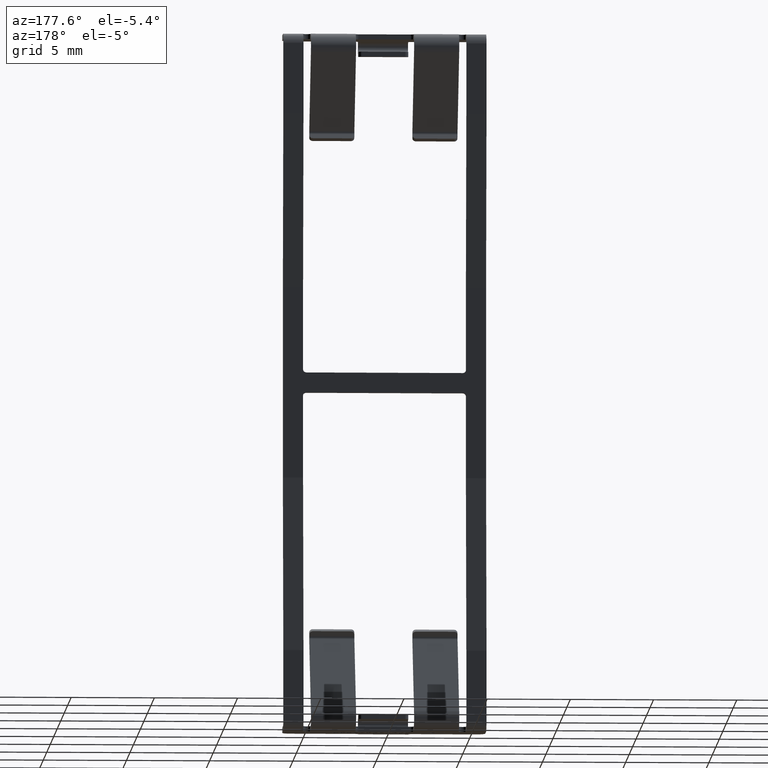
[diagram: clean part render]
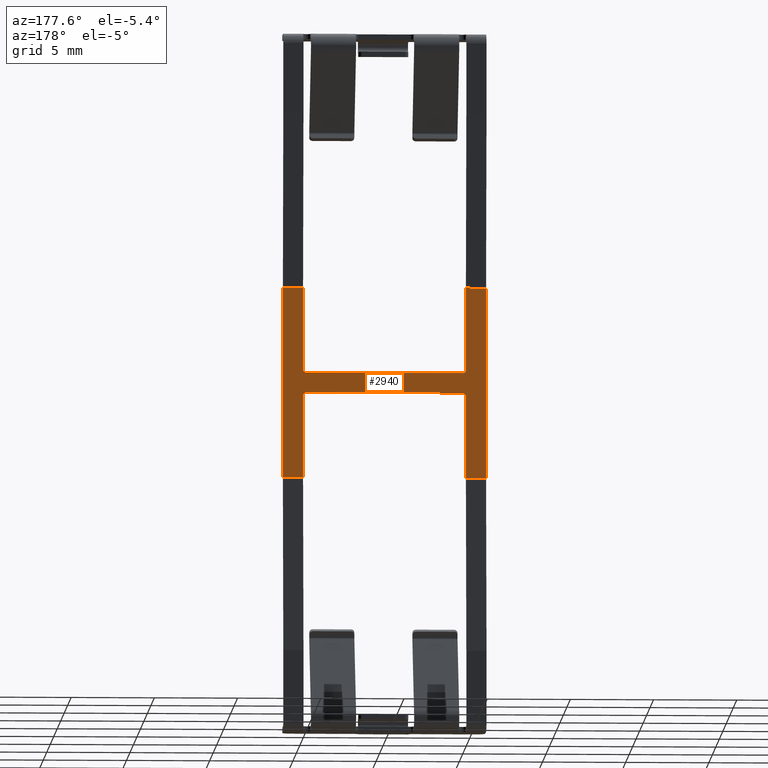
[diagram: same view with one face highlighted and labeled with its STEP entity id]
A machine part, auxiliary view. The second image highlights one B-rep face of the part: STEP entity #2940.
In plain terms, the highlighted planar face has unit normal (0, -1, -0).
Its self-contained STEP definition (entity closure, byte-faithful):
#116 = VERTEX_POINT ( 'NONE', #4712 ) ;
#126 = AXIS2_PLACEMENT_3D ( 'NONE', #7780, #840, #8713 ) ;
#146 = CARTESIAN_POINT ( 'NONE',  ( 4.700000000000001066, 2.250000000000025757, -20.42499999999999716 ) ) ;
#382 = DIRECTION ( 'NONE',  ( 0.0000000000000000000, 2.168404344971021884E-15, -1.000000000000000000 ) ) ;
#405 = ORIENTED_EDGE ( 'NONE', *, *, #2296, .T. ) ;
#455 = CARTESIAN_POINT ( 'NONE',  ( -4.899999999999999467, 2.250000000000027534, -21.82500000000000284 ) ) ;
#495 = VECTOR ( 'NONE', #10256, 1000.000000000000000 ) ;
#552 = DIRECTION ( 'NONE',  ( 0.0000000000000000000, -1.817990202823693441E-15, 1.000000000000000000 ) ) ;
#719 = CARTESIAN_POINT ( 'NONE',  ( 4.899999999999999467, 2.250000000000031974, -26.74999999999999645 ) ) ;
#780 = VECTOR ( 'NONE', #2640, 1000.000000000000000 ) ;
#790 = VECTOR ( 'NONE', #11132, 1000.000000000000000 ) ;
#840 = DIRECTION ( 'NONE',  ( 0.0000000000000000000, -1.000000000000000000, -1.817990202823693441E-15 ) ) ;
#911 = EDGE_CURVE ( 'NONE', #6124, #2754, #4069, .T. ) ;
#971 = DIRECTION ( 'NONE',  ( 1.000000000000000000, 0.0000000000000000000, 0.0000000000000000000 ) ) ;
#1218 = ORIENTED_EDGE ( 'NONE', *, *, #2146, .T. ) ;
#1421 = CARTESIAN_POINT ( 'NONE',  ( -4.899999999999999467, 2.250000000000025757, -20.42499999999999716 ) ) ;
#1833 = EDGE_CURVE ( 'NONE', #3126, #116, #2651, .T. ) ;
#1860 = CIRCLE ( 'NONE', #7146, 0.1999999999999987899 ) ;
#1927 = DIRECTION ( 'NONE',  ( 0.0000000000000000000, -1.000000000000000000, -1.817990202823693441E-15 ) ) ;
#2145 = CIRCLE ( 'NONE', #126, 0.1999999999999987899 ) ;
#2146 = EDGE_CURVE ( 'NONE', #6031, #6177, #2145, .T. ) ;
#2162 = VECTOR ( 'NONE', #5165, 1000.000000000000000 ) ;
#2296 = EDGE_CURVE ( 'NONE', #5752, #3163, #6956, .T. ) ;
#2372 = CARTESIAN_POINT ( 'NONE',  ( -4.900000000000001243, 2.250000000000032863, -26.74999999999999645 ) ) ;
#2460 = VERTEX_POINT ( 'NONE', #2372 ) ;
#2475 = CARTESIAN_POINT ( 'NONE',  ( 4.899999999999999467, 2.250000000000027534, -21.82500000000000284 ) ) ;
#2572 = CARTESIAN_POINT ( 'NONE',  ( -4.899999999999999467, 2.250000000000027534, -21.62500000000000000 ) ) ;
#2640 = DIRECTION ( 'NONE',  ( 1.000000000000000000, 0.0000000000000000000, 0.0000000000000000000 ) ) ;
#2651 = CIRCLE ( 'NONE', #6011, 0.1999999999999987899 ) ;
#2754 = VERTEX_POINT ( 'NONE', #146 ) ;
#2810 = LINE ( 'NONE', #5684, #9597 ) ;
#2817 = VERTEX_POINT ( 'NONE', #5606 ) ;
#2862 = EDGE_CURVE ( 'NONE', #2817, #5219, #2810, .T. ) ;
#2898 = DIRECTION ( 'NONE',  ( -1.000000000000000000, -0.0000000000000000000, 0.0000000000000000000 ) ) ;
#2940 = ADVANCED_FACE ( 'NONE', ( #4324 ), #8499, .F. ) ;
#3054 = CARTESIAN_POINT ( 'NONE',  ( -4.899999999999999467, 2.250000000000025757, -20.22500000000000142 ) ) ;
#3099 = DIRECTION ( 'NONE',  ( 0.0000000000000000000, -1.000000000000000000, -1.817990202823693441E-15 ) ) ;
#3126 = VERTEX_POINT ( 'NONE', #2475 ) ;
#3163 = VERTEX_POINT ( 'NONE', #6129 ) ;
#3225 = CARTESIAN_POINT ( 'NONE',  ( -6.100000000000001421, 2.250000000000032863, -26.74999999999999645 ) ) ;
#3271 = ORIENTED_EDGE ( 'NONE', *, *, #8640, .F. ) ;
#3372 = DIRECTION ( 'NONE',  ( 0.0000000000000000000, -2.935152121352756815E-15, 1.000000000000000000 ) ) ;
#3472 = CARTESIAN_POINT ( 'NONE',  ( -4.700000000000000178, 2.250000000000025757, -20.42499999999999716 ) ) ;
#3492 = ORIENTED_EDGE ( 'NONE', *, *, #911, .T. ) ;
#3668 = EDGE_CURVE ( 'NONE', #7095, #5219, #7919, .T. ) ;
#3821 = CARTESIAN_POINT ( 'NONE',  ( 4.899999999999999467, 2.250000000000025757, -20.42499999999999716 ) ) ;
#3957 = EDGE_CURVE ( 'NONE', #6031, #116, #10963, .T. ) ;
#4069 = LINE ( 'NONE', #6289, #4336 ) ;
#4071 = VECTOR ( 'NONE', #6852, 1000.000000000000000 ) ;
#4300 = ORIENTED_EDGE ( 'NONE', *, *, #2862, .F. ) ;
#4324 = FACE_OUTER_BOUND ( 'NONE', #4455, .T. ) ;
#4336 = VECTOR ( 'NONE', #971, 1000.000000000000000 ) ;
#4412 = VERTEX_POINT ( 'NONE', #6392 ) ;
#4455 = EDGE_LOOP ( 'NONE', ( #7281, #4539, #405, #5628, #5244, #8776, #3492, #7234, #7153, #4300, #3271, #8519, #11316, #9245, #8763, #1218 ) ) ;
#4539 = ORIENTED_EDGE ( 'NONE', *, *, #10933, .T. ) ;
#4712 = CARTESIAN_POINT ( 'NONE',  ( 4.700000000000001066, 2.250000000000027534, -21.62500000000000000 ) ) ;
#4741 = CARTESIAN_POINT ( 'NONE',  ( 6.100000000000001421, 2.250000000000032863, -26.74999999999999645 ) ) ;
#4845 = DIRECTION ( 'NONE',  ( 0.0000000000000000000, 1.817990202823693441E-15, -1.000000000000000000 ) ) ;
#4988 = VECTOR ( 'NONE', #552, 1000.000000000000000 ) ;
#5015 = CARTESIAN_POINT ( 'NONE',  ( -4.900000000000001243, 2.250000000000013323, -15.30000000000009308 ) ) ;
#5127 = LINE ( 'NONE', #10141, #4988 ) ;
#5165 = DIRECTION ( 'NONE',  ( -1.000000000000000000, -0.0000000000000000000, 0.0000000000000000000 ) ) ;
#5219 = VERTEX_POINT ( 'NONE', #6817 ) ;
#5244 = ORIENTED_EDGE ( 'NONE', *, *, #9656, .F. ) ;
#5470 = EDGE_CURVE ( 'NONE', #2754, #7095, #5532, .T. ) ;
#5532 = CIRCLE ( 'NONE', #10101, 0.1999999999999987899 ) ;
#5606 = CARTESIAN_POINT ( 'NONE',  ( 6.100000000000001421, 2.250000000000013323, -15.30000000000009308 ) ) ;
#5628 = ORIENTED_EDGE ( 'NONE', *, *, #6696, .F. ) ;
#5684 = CARTESIAN_POINT ( 'NONE',  ( 6.099999999999999645, 2.250000000000011990, -15.30000000000008953 ) ) ;
#5752 = VERTEX_POINT ( 'NONE', #3225 ) ;
#5803 = VECTOR ( 'NONE', #8484, 1000.000000000000000 ) ;
#5828 = VERTEX_POINT ( 'NONE', #3054 ) ;
#6011 = AXIS2_PLACEMENT_3D ( 'NONE', #7295, #6432, #9116 ) ;
#6031 = VERTEX_POINT ( 'NONE', #6834 ) ;
#6124 = VERTEX_POINT ( 'NONE', #3472 ) ;
#6129 = CARTESIAN_POINT ( 'NONE',  ( -6.100000000000001421, 2.250000000000013323, -15.30000000000009308 ) ) ;
#6177 = VERTEX_POINT ( 'NONE', #455 ) ;
#6209 = CARTESIAN_POINT ( 'NONE',  ( 6.099999999999999645, 2.250000000000031974, -26.74999999999999645 ) ) ;
#6289 = CARTESIAN_POINT ( 'NONE',  ( -4.899999999999999467, 2.250000000000025757, -20.42499999999999716 ) ) ;
#6392 = CARTESIAN_POINT ( 'NONE',  ( 4.900000000000001243, 2.250000000000032863, -26.74999999999999645 ) ) ;
#6432 = DIRECTION ( 'NONE',  ( 0.0000000000000000000, -1.000000000000000000, -1.817990202823693441E-15 ) ) ;
#6451 = CARTESIAN_POINT ( 'NONE',  ( -4.700000000000000178, 2.250000000000020428, -20.22500000000000142 ) ) ;
#6533 = CARTESIAN_POINT ( 'NONE',  ( 4.899999999999999467, 2.250000000000025757, -20.22500000000000142 ) ) ;
#6696 = EDGE_CURVE ( 'NONE', #11305, #3163, #9625, .T. ) ;
#6813 = LINE ( 'NONE', #11312, #4071 ) ;
#6817 = CARTESIAN_POINT ( 'NONE',  ( 4.900000000000001243, 2.250000000000013323, -15.30000000000009308 ) ) ;
#6834 = CARTESIAN_POINT ( 'NONE',  ( -4.700000000000000178, 2.250000000000023093, -21.62500000000000000 ) ) ;
#6852 = DIRECTION ( 'NONE',  ( 0.0000000000000000000, -9.089951014118467203E-16, 1.000000000000000000 ) ) ;
#6956 = LINE ( 'NONE', #8346, #495 ) ;
#7095 = VERTEX_POINT ( 'NONE', #6533 ) ;
#7142 = DIRECTION ( 'NONE',  ( 0.0000000000000000000, 2.168404344971021884E-15, -1.000000000000000000 ) ) ;
#7146 = AXIS2_PLACEMENT_3D ( 'NONE', #6451, #10994, #382 ) ;
#7153 = ORIENTED_EDGE ( 'NONE', *, *, #3668, .T. ) ;
#7161 = EDGE_CURVE ( 'NONE', #2460, #6177, #6813, .T. ) ;
#7234 = ORIENTED_EDGE ( 'NONE', *, *, #5470, .T. ) ;
#7281 = ORIENTED_EDGE ( 'NONE', *, *, #7161, .F. ) ;
#7283 = CARTESIAN_POINT ( 'NONE',  ( 4.700000000000001066, 2.250000000000020428, -20.22500000000000142 ) ) ;
#7295 = CARTESIAN_POINT ( 'NONE',  ( 4.700000000000001066, 2.250000000000023093, -21.82500000000000284 ) ) ;
#7770 = VECTOR ( 'NONE', #3372, 1000.000000000000000 ) ;
#7780 = CARTESIAN_POINT ( 'NONE',  ( -4.700000000000000178, 2.250000000000023093, -21.82500000000000284 ) ) ;
#7919 = LINE ( 'NONE', #3821, #9297 ) ;
#8346 = CARTESIAN_POINT ( 'NONE',  ( -6.099999999999999645, 2.250000000000011990, -15.30000000000008953 ) ) ;
#8452 = CARTESIAN_POINT ( 'NONE',  ( 6.099999999999999645, 2.250000000000031974, -26.74999999999999645 ) ) ;
#8484 = DIRECTION ( 'NONE',  ( 0.0000000000000000000, -9.089951014118467203E-16, 1.000000000000000000 ) ) ;
#8499 = PLANE ( 'NONE',  #8762 ) ;
#8519 = ORIENTED_EDGE ( 'NONE', *, *, #9533, .T. ) ;
#8629 = LINE ( 'NONE', #6209, #10294 ) ;
#8640 = EDGE_CURVE ( 'NONE', #10553, #2817, #5127, .T. ) ;
#8713 = DIRECTION ( 'NONE',  ( 0.0000000000000000000, 2.168404344971021884E-15, -1.000000000000000000 ) ) ;
#8762 = AXIS2_PLACEMENT_3D ( 'NONE', #9247, #3099, #4845 ) ;
#8763 = ORIENTED_EDGE ( 'NONE', *, *, #3957, .F. ) ;
#8776 = ORIENTED_EDGE ( 'NONE', *, *, #10534, .T. ) ;
#8945 = DIRECTION ( 'NONE',  ( 0.0000000000000000000, -2.935152121352756815E-15, 1.000000000000000000 ) ) ;
#9116 = DIRECTION ( 'NONE',  ( 0.0000000000000000000, 2.168404344971021884E-15, -1.000000000000000000 ) ) ;
#9137 = LINE ( 'NONE', #8452, #790 ) ;
#9245 = ORIENTED_EDGE ( 'NONE', *, *, #1833, .T. ) ;
#9247 = CARTESIAN_POINT ( 'NONE',  ( 6.099999999999999645, 2.250000000000011990, -15.30000000000008953 ) ) ;
#9297 = VECTOR ( 'NONE', #8945, 1000.000000000000000 ) ;
#9533 = EDGE_CURVE ( 'NONE', #10553, #4412, #9137, .T. ) ;
#9597 = VECTOR ( 'NONE', #2898, 1000.000000000000000 ) ;
#9625 = LINE ( 'NONE', #10132, #2162 ) ;
#9656 = EDGE_CURVE ( 'NONE', #5828, #11305, #11376, .T. ) ;
#10101 = AXIS2_PLACEMENT_3D ( 'NONE', #7283, #1927, #7142 ) ;
#10132 = CARTESIAN_POINT ( 'NONE',  ( 6.099999999999999645, 2.250000000000011990, -15.30000000000008953 ) ) ;
#10141 = CARTESIAN_POINT ( 'NONE',  ( 6.099999999999999645, 2.250000000000011990, -15.30000000000008953 ) ) ;
#10200 = EDGE_CURVE ( 'NONE', #4412, #3126, #11220, .T. ) ;
#10256 = DIRECTION ( 'NONE',  ( 0.0000000000000000000, -1.817990202823693441E-15, 1.000000000000000000 ) ) ;
#10294 = VECTOR ( 'NONE', #10675, 1000.000000000000000 ) ;
#10534 = EDGE_CURVE ( 'NONE', #5828, #6124, #1860, .T. ) ;
#10553 = VERTEX_POINT ( 'NONE', #4741 ) ;
#10675 = DIRECTION ( 'NONE',  ( -1.000000000000000000, -0.0000000000000000000, 0.0000000000000000000 ) ) ;
#10933 = EDGE_CURVE ( 'NONE', #2460, #5752, #8629, .T. ) ;
#10963 = LINE ( 'NONE', #2572, #780 ) ;
#10994 = DIRECTION ( 'NONE',  ( 0.0000000000000000000, -1.000000000000000000, -1.817990202823693441E-15 ) ) ;
#11132 = DIRECTION ( 'NONE',  ( -1.000000000000000000, -0.0000000000000000000, 0.0000000000000000000 ) ) ;
#11220 = LINE ( 'NONE', #719, #5803 ) ;
#11305 = VERTEX_POINT ( 'NONE', #5015 ) ;
#11312 = CARTESIAN_POINT ( 'NONE',  ( -4.899999999999999467, 2.250000000000031974, -26.74999999999999645 ) ) ;
#11316 = ORIENTED_EDGE ( 'NONE', *, *, #10200, .T. ) ;
#11376 = LINE ( 'NONE', #1421, #7770 ) ;